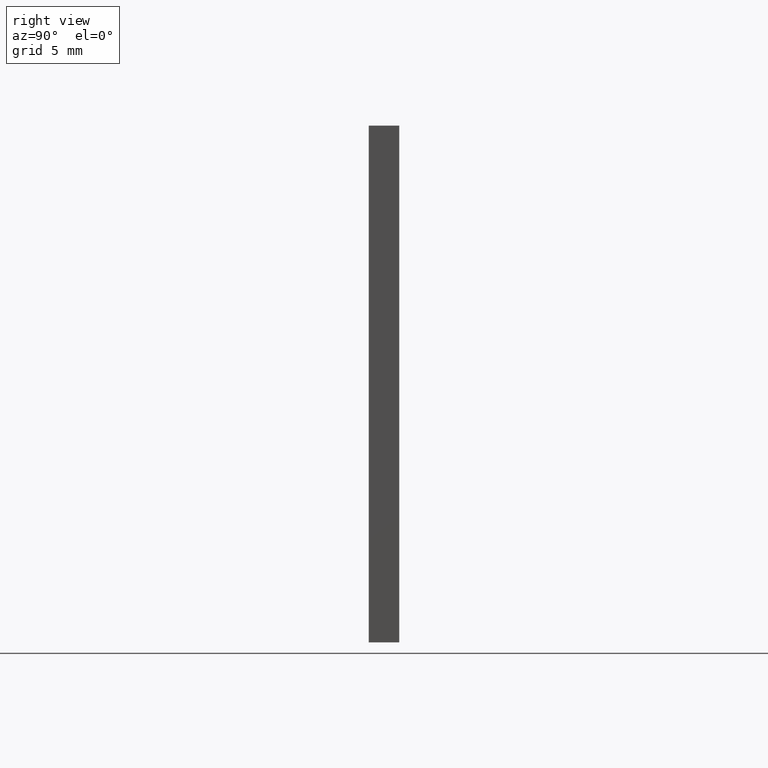
[diagram: clean part render]
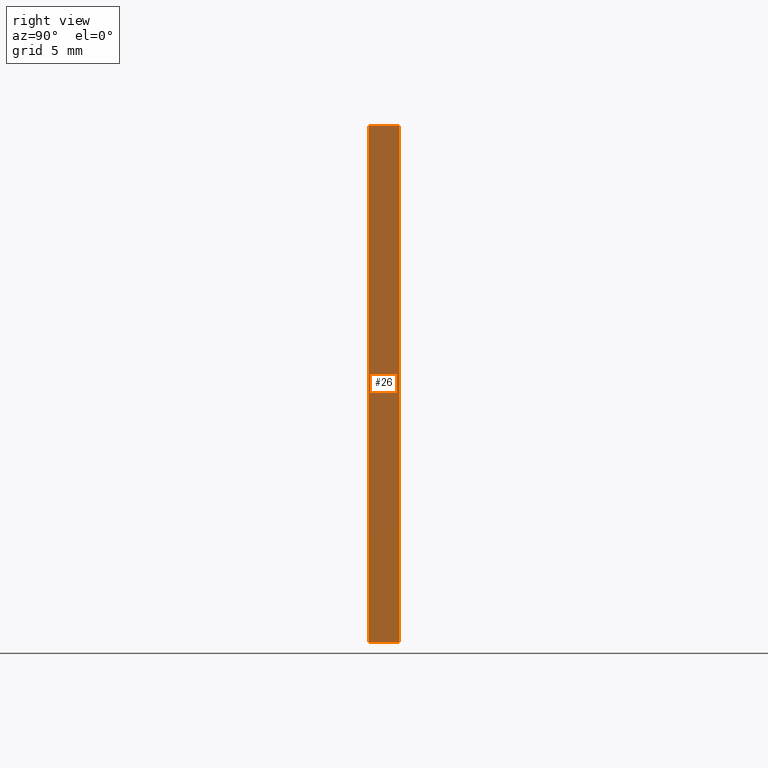
[diagram: same view with one face highlighted and labeled with its STEP entity id]
A machine part, right view. The second image highlights one B-rep face of the part: STEP entity #26.
In plain terms, the highlighted planar face has unit normal (-1, 0, 0).
Its self-contained STEP definition (entity closure, byte-faithful):
#6 = VERTEX_POINT ( 'NONE', #64 ) ;
#11 = VERTEX_POINT ( 'NONE', #111 ) ;
#12 = CARTESIAN_POINT ( 'NONE',  ( 12.69999999999999800, 0.0000000000000000000, 12.69999999999999900 ) ) ;
#13 = EDGE_CURVE ( 'NONE', #11, #41, #93, .T. ) ;
#17 = LINE ( 'NONE', #21, #79 ) ;
#21 = CARTESIAN_POINT ( 'NONE',  ( 12.69999999999999800, 1.500000000000000000, -12.69999999999999800 ) ) ;
#26 = ADVANCED_FACE ( 'NONE', ( #101 ), #49, .F. ) ;
#27 = CARTESIAN_POINT ( 'NONE',  ( 12.69999999999999800, 1.500000000000000000, -12.69999999999999800 ) ) ;
#30 = DIRECTION ( 'NONE',  ( 0.0000000000000000000, 0.0000000000000000000, -1.000000000000000000 ) ) ;
#33 = EDGE_LOOP ( 'NONE', ( #142, #197, #121, #202 ) ) ;
#35 = VERTEX_POINT ( 'NONE', #47 ) ;
#39 = EDGE_CURVE ( 'NONE', #35, #6, #109, .T. ) ;
#41 = VERTEX_POINT ( 'NONE', #27 ) ;
#47 = CARTESIAN_POINT ( 'NONE',  ( 12.69999999999999800, 0.0000000000000000000, 12.69999999999999900 ) ) ;
#49 = PLANE ( 'NONE',  #184 ) ;
#56 = DIRECTION ( 'NONE',  ( -0.0000000000000000000, -1.000000000000000000, -0.0000000000000000000 ) ) ;
#64 = CARTESIAN_POINT ( 'NONE',  ( 12.69999999999999800, 0.0000000000000000000, -12.69999999999999800 ) ) ;
#79 = VECTOR ( 'NONE', #56, 1000.000000000000000 ) ;
#80 = EDGE_CURVE ( 'NONE', #11, #35, #144, .T. ) ;
#91 = VECTOR ( 'NONE', #127, 1000.000000000000000 ) ;
#93 = LINE ( 'NONE', #97, #126 ) ;
#97 = CARTESIAN_POINT ( 'NONE',  ( 12.69999999999999800, 1.500000000000000000, 12.69999999999999900 ) ) ;
#101 = FACE_OUTER_BOUND ( 'NONE', #33, .T. ) ;
#108 = DIRECTION ( 'NONE',  ( 0.0000000000000000000, 0.0000000000000000000, -1.000000000000000000 ) ) ;
#109 = LINE ( 'NONE', #12, #117 ) ;
#111 = CARTESIAN_POINT ( 'NONE',  ( 12.69999999999999800, 1.500000000000000000, 12.69999999999999900 ) ) ;
#114 = DIRECTION ( 'NONE',  ( -1.000000000000000000, 0.0000000000000000000, 0.0000000000000000000 ) ) ;
#117 = VECTOR ( 'NONE', #108, 1000.000000000000000 ) ;
#121 = ORIENTED_EDGE ( 'NONE', *, *, #13, .F. ) ;
#126 = VECTOR ( 'NONE', #30, 1000.000000000000000 ) ;
#127 = DIRECTION ( 'NONE',  ( -0.0000000000000000000, -1.000000000000000000, -0.0000000000000000000 ) ) ;
#128 = EDGE_CURVE ( 'NONE', #41, #6, #17, .T. ) ;
#131 = CARTESIAN_POINT ( 'NONE',  ( 12.69999999999999800, 1.500000000000000000, 12.69999999999999900 ) ) ;
#142 = ORIENTED_EDGE ( 'NONE', *, *, #39, .T. ) ;
#144 = LINE ( 'NONE', #181, #91 ) ;
#181 = CARTESIAN_POINT ( 'NONE',  ( 12.69999999999999800, 1.500000000000000000, 12.69999999999999900 ) ) ;
#184 = AXIS2_PLACEMENT_3D ( 'NONE', #131, #114, #198 ) ;
#197 = ORIENTED_EDGE ( 'NONE', *, *, #128, .F. ) ;
#198 = DIRECTION ( 'NONE',  ( 0.0000000000000000000, 0.0000000000000000000, 1.000000000000000000 ) ) ;
#202 = ORIENTED_EDGE ( 'NONE', *, *, #80, .T. ) ;